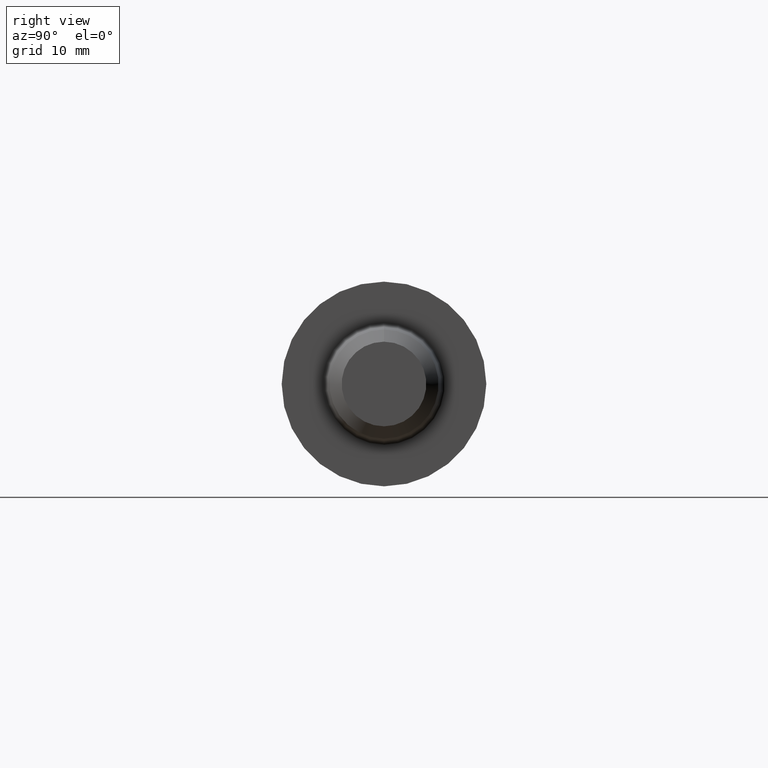
[diagram: clean part render]
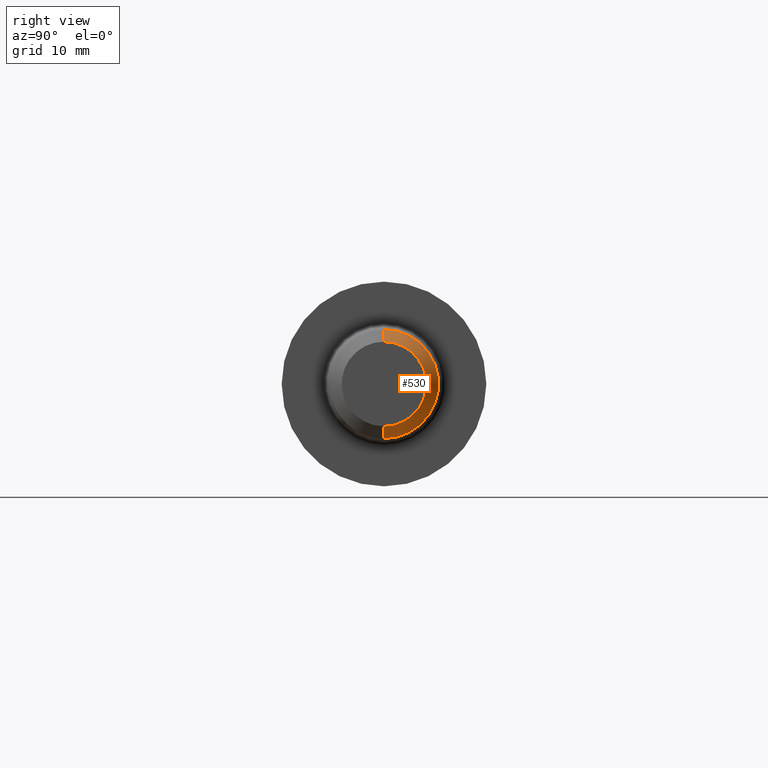
[diagram: same view with one face highlighted and labeled with its STEP entity id]
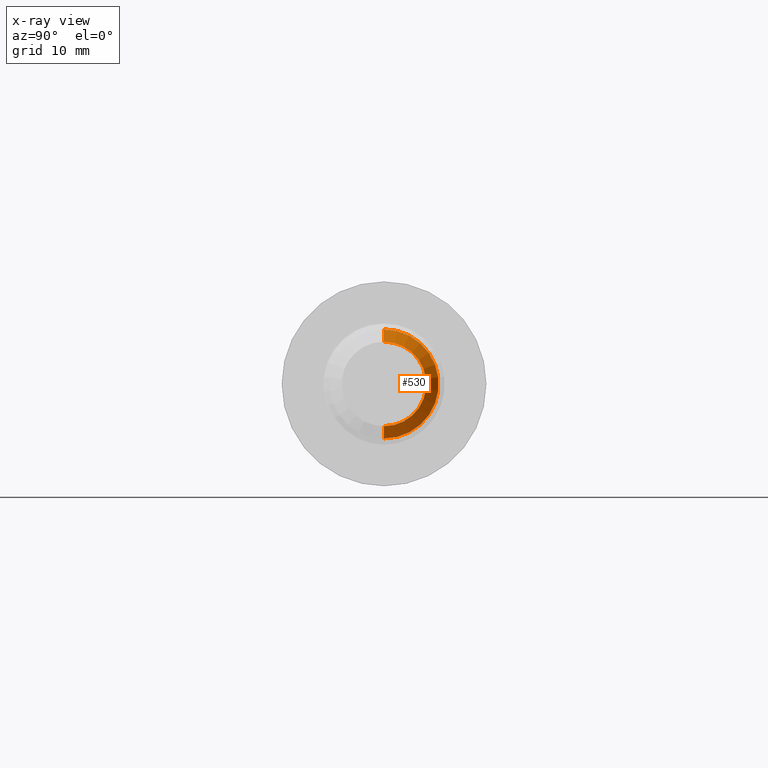
[diagram: x-ray of the same camera — body ghosted, the highlighted face saturated]
A machine part, right view. The second image highlights one B-rep face of the part: STEP entity #530.
The next image is the same camera in x-ray: the body ghosted, the highlighted face saturated — about 0% of this face is hidden behind the body in this view.
In plain terms, the highlighted conical surface has half-angle 45 deg.
Its self-contained STEP definition (entity closure, byte-faithful):
#36 = ORIENTED_EDGE ( 'NONE', *, *, #173, .T. ) ;
#40 = CARTESIAN_POINT ( 'NONE',  ( 2.750000000000000000, 0.000000000000000000, 0.000000000000000000 ) ) ;
#52 = DIRECTION ( 'NONE',  ( -0.7071067811865537900, 0.000000000000000000, 0.7071067811865411334 ) ) ;
#89 = VERTEX_POINT ( 'NONE', #198 ) ;
#102 = EDGE_CURVE ( 'NONE', #159, #529, #460, .T. ) ;
#105 = CARTESIAN_POINT ( 'NONE',  ( 2.750000000000000000, 0.000000000000000000, 0.1732817872713283414 ) ) ;
#137 = DIRECTION ( 'NONE',  ( 0.000000000000000000, 0.000000000000000000, 1.000000000000000000 ) ) ;
#159 = VERTEX_POINT ( 'NONE', #105 ) ;
#173 = EDGE_CURVE ( 'NONE', #89, #430, #456, .T. ) ;
#174 = DIRECTION ( 'NONE',  ( 0.000000000000000000, 0.000000000000000000, 1.000000000000000000 ) ) ;
#177 = DIRECTION ( 'NONE',  ( -1.000000000000000000, -0.000000000000000000, -0.000000000000000000 ) ) ;
#198 = CARTESIAN_POINT ( 'NONE',  ( 2.750000000000000000, 2.428251561110483174E-17, -0.1732817872713283414 ) ) ;
#215 = ORIENTED_EDGE ( 'NONE', *, *, #425, .T. ) ;
#252 = CARTESIAN_POINT ( 'NONE',  ( 2.750000000000000000, 0.000000000000000000, 0.1732817872713283414 ) ) ;
#292 = CARTESIAN_POINT ( 'NONE',  ( 2.699999999999999734, 0.000000000000000000, 0.2232817872713277474 ) ) ;
#302 = DIRECTION ( 'NONE',  ( -0.7071067811865537900, 8.659560562354855205E-17, -0.7071067811865411334 ) ) ;
#321 = ORIENTED_EDGE ( 'NONE', *, *, #102, .F. ) ;
#324 = DIRECTION ( 'NONE',  ( 0.000000000000000000, 0.000000000000000000, 1.000000000000000000 ) ) ;
#356 = CARTESIAN_POINT ( 'NONE',  ( 2.750000000000000000, 2.122089861323648632E-17, -0.1732817872713283414 ) ) ;
#377 = CIRCLE ( 'NONE', #495, 0.1732817872713283414 ) ;
#397 = CARTESIAN_POINT ( 'NONE',  ( 2.750000000000000000, 0.000000000000000000, 0.000000000000000000 ) ) ;
#425 = EDGE_CURVE ( 'NONE', #159, #89, #377, .T. ) ;
#426 = VECTOR ( 'NONE', #52, 39.37007874015748854 ) ;
#428 = CIRCLE ( 'NONE', #451, 0.2232817872713277474 ) ;
#430 = VERTEX_POINT ( 'NONE', #431 ) ;
#431 = CARTESIAN_POINT ( 'NONE',  ( 2.699999999999999734, 2.734413260897317717E-17, -0.2232817872713277474 ) ) ;
#432 = ORIENTED_EDGE ( 'NONE', *, *, #461, .F. ) ;
#451 = AXIS2_PLACEMENT_3D ( 'NONE', #568, #628, #174 ) ;
#456 = LINE ( 'NONE', #356, #534 ) ;
#459 = AXIS2_PLACEMENT_3D ( 'NONE', #397, #645, #137 ) ;
#460 = LINE ( 'NONE', #252, #426 ) ;
#461 = EDGE_CURVE ( 'NONE', #529, #430, #428, .T. ) ;
#495 = AXIS2_PLACEMENT_3D ( 'NONE', #40, #177, #324 ) ;
#529 = VERTEX_POINT ( 'NONE', #292 ) ;
#530 = ADVANCED_FACE ( 'NONE', ( #592 ), #562, .T. ) ;
#534 = VECTOR ( 'NONE', #302, 39.37007874015748854 ) ;
#537 = EDGE_LOOP ( 'NONE', ( #215, #36, #432, #321 ) ) ;
#562 = CONICAL_SURFACE ( 'NONE', #459, 0.1732817872713283414, 0.7853981633974393972 ) ;
#568 = CARTESIAN_POINT ( 'NONE',  ( 2.699999999999999734, 0.000000000000000000, 0.000000000000000000 ) ) ;
#592 = FACE_OUTER_BOUND ( 'NONE', #537, .T. ) ;
#628 = DIRECTION ( 'NONE',  ( -1.000000000000000000, -0.000000000000000000, -0.000000000000000000 ) ) ;
#645 = DIRECTION ( 'NONE',  ( -1.000000000000000000, -0.000000000000000000, -0.000000000000000000 ) ) ;